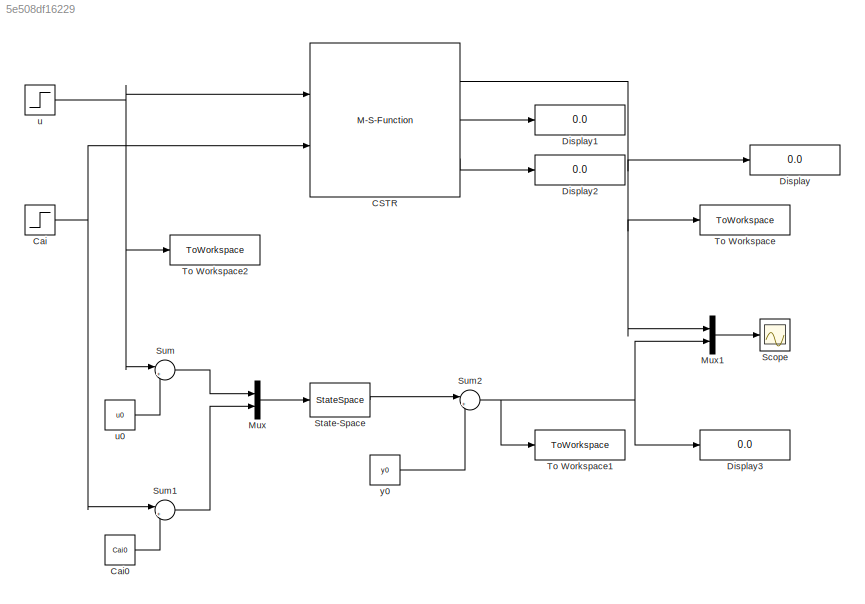
MODEL slx_5e508df16229
KIND model
CONFIG AbsTol = auto
CONFIG EnableMultiTasking = off
CONFIG FixedStep = 10e-3
CONFIG InitFcn = CSTRInit;
CONFIG MaxStep = 10e-3
CONFIG MinStep = auto
CONFIG RelTol = 1e-3
CONFIG SampleTimeConstraint = Unconstrained
CONFIG Solver = FixedStepAuto
CONFIG SolverName = FixedStepAuto
CONFIG StartTime = 0.0
CONFIG StopTime = 6
BLOCK [M-S-Function] CSTR
  FunctionName = sfun_CSTR
  Parameters = [k1;\nk2;\nk3; V], [Ca0; Cb0]
  Ports = [2, 3]
BLOCK [Step] Cai
  After = 10
  Before = 10
  SampleTime = 0
  Time = 20
BLOCK [Constant] Cai0
  Value = Cai0
BLOCK [Display] Display
  Decimation = 1
  Ports = [1]
BLOCK [Display] Display1
  Decimation = 1
  Ports = [1]
BLOCK [Display] Display2
  Decimation = 1
  Ports = [1]
BLOCK [Display] Display3
  Decimation = 1
  Ports = [1]
BLOCK [Mux] Mux
  DisplayOption = bar
  Inputs = 2
  Ports = [2, 1]
BLOCK [Mux] Mux1
  DisplayOption = bar
  Inputs = 2
  Ports = [2, 1]
BLOCK [Scope] Scope
  Floating = off
  NumInputPorts = 1
  Ports = [1]
  ScopeSpecificationString = Simulink.scopes.TimeScopeBlockCfg('CurrentConfiguration', extmgr.ConfigurationSet(extmgr.Configuration('Core','General UI',true),extmgr.Configuration('Core','Source UI',true),extmgr.Configuration('Sources','WiredSimulink',true),extmgr.Configuration('Visuals','Time Domain',true,'SerializedDisplays',{struct('MinYLimReal','69.47724','MaxYLimReal','72.10523','YLabelReal','','MinYLimMag','69.47724','Ma...<+1394ch>
BLOCK [StateSpace] State-Space
  A = A
  B = B
  C = C
  D = D
  InitialCondition = 0
  Ports = [1, 1]
BLOCK [Sum] Sum
  Inputs = |+-
  Ports = [2, 1]
BLOCK [Sum] Sum1
  Inputs = |+-
  Ports = [2, 1]
BLOCK [Sum] Sum2
  Inputs = |++
  Ports = [2, 1]
BLOCK [ToWorkspace] To Workspace
  FixptAsFi = on
  MaxDataPoints = inf
  Ports = [1]
  SampleTime = -1
  SaveFormat = Timeseries
  VariableName = yNonLinear
BLOCK [ToWorkspace] To Workspace1
  FixptAsFi = on
  MaxDataPoints = inf
  Ports = [1]
  SampleTime = -1
  SaveFormat = Timeseries
  VariableName = yLinear
BLOCK [ToWorkspace] To Workspace2
  FixptAsFi = on
  MaxDataPoints = inf
  Ports = [1]
  SampleTime = -1
  SaveFormat = Timeseries
  VariableName = u
BLOCK [Step] u
  After = 65
  Before = 60
  SampleTime = 0
  Time = 0
BLOCK [Constant] u0
  Value = u0
BLOCK [Constant] y0
  Value = y0
NET CSTR:1 -> Display:1, Mux1:1, To Workspace:1
LINE CSTR:2 -> Display1:1
LINE CSTR:3 -> Display2:1
LINE Cai0:1 -> Sum1:2
NET Cai:1 -> CSTR:2, Sum1:1
LINE Mux1:1 -> Scope:1
LINE Mux:1 -> State-Space:1
LINE State-Space:1 -> Sum2:1
LINE Sum1:1 -> Mux:2
NET Sum2:1 -> Display3:1, Mux1:2, To Workspace1:1
LINE Sum:1 -> Mux:1
LINE u0:1 -> Sum:2
NET u:1 -> CSTR:1, Sum:1, To Workspace2:1
LINE y0:1 -> Sum2:2
note: NET lines group one-source signal fan-out (src -> all destinations, sorted); 1:1 wires keep LINE
